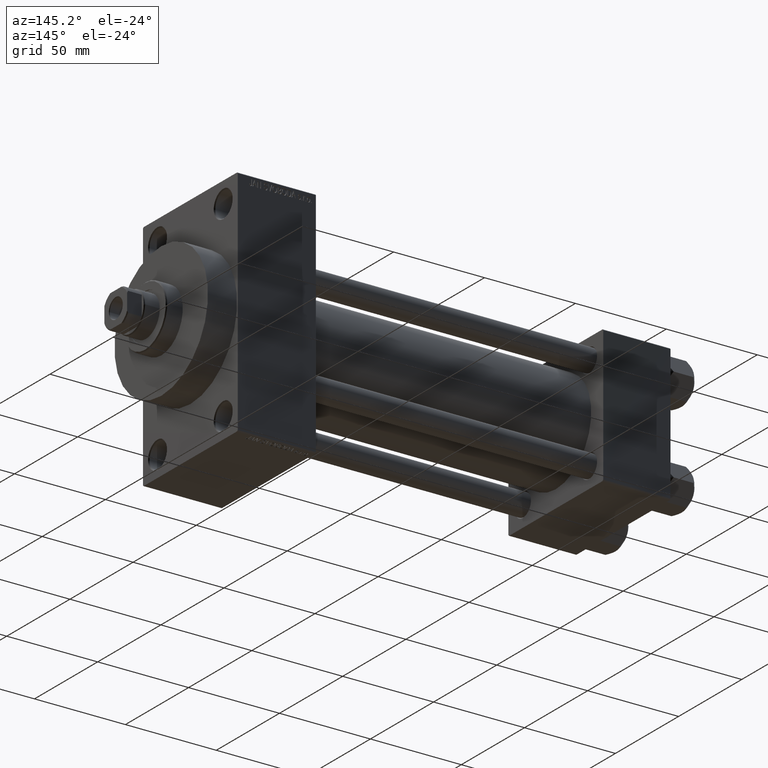
[diagram: clean part render]
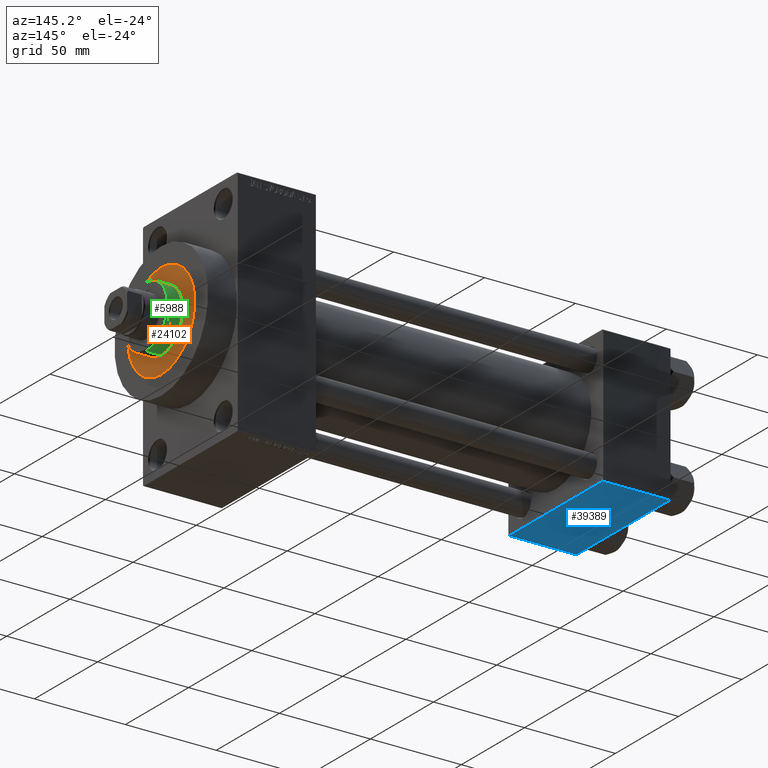
[diagram: same view with three faces highlighted in distinct colors, each labeled with its STEP entity id]
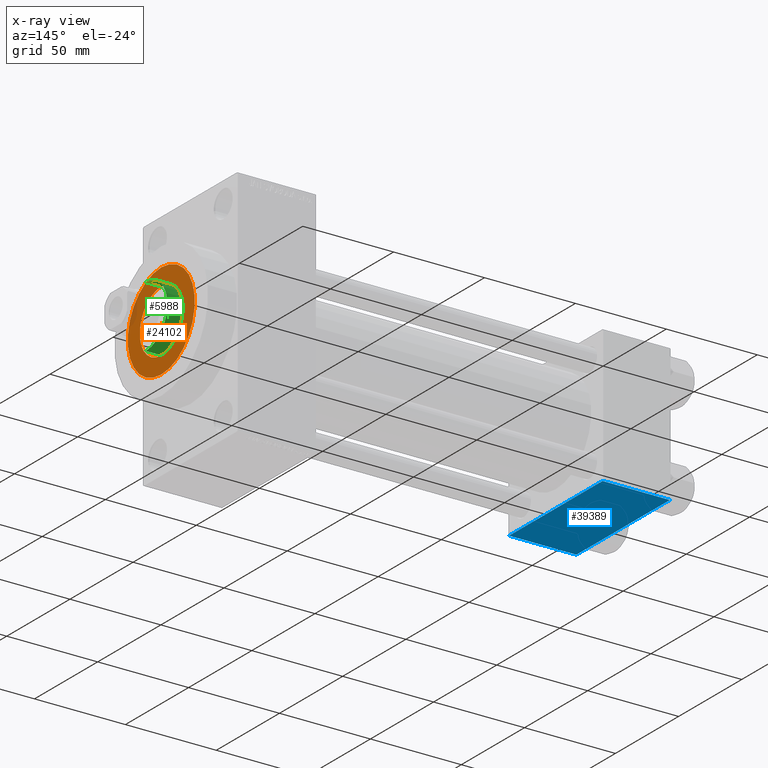
[diagram: x-ray of the same camera — body ghosted, the three highlighted faces saturated]
A machine part, auxiliary view with three faces highlighted in distinct colors.
The next image is the same camera in x-ray (body ghosted, the three faces saturated) — at least one of them is partly hidden behind the body in this view.
Their STEP definitions:

[orange] entity #24102 — the highlighted planar face has unit normal (1, -0, -0).
#3070 = EDGE_CURVE ( 'NONE', #34101, #16384, #21418, .T. ) ;
#3298 = ORIENTED_EDGE ( 'NONE', *, *, #14132, .F. ) ;
#3324 = DIRECTION ( 'NONE',  ( 1.000000000000000000, 0.000000000000000000, 0.000000000000000000 ) ) ;
#3555 = CARTESIAN_POINT ( 'NONE',  ( 26.50000000000000355, 3.245314017740486554E-15, 43.25999999999999801 ) ) ;
#5404 = AXIS2_PLACEMENT_3D ( 'NONE', #16826, #45733, #32120 ) ;
#5638 = DIRECTION ( 'NONE',  ( 1.000000000000000000, 0.000000000000000000, 0.000000000000000000 ) ) ;
#5893 = ORIENTED_EDGE ( 'NONE', *, *, #3070, .T. ) ;
#7927 = CARTESIAN_POINT ( 'NONE',  ( 17.00000000000000000, 2.081899558550500280E-15, 43.25999999999999801 ) ) ;
#9525 = AXIS2_PLACEMENT_3D ( 'NONE', #12564, #16381, #5638 ) ;
#10707 = FACE_BOUND ( 'NONE', #20693, .T. ) ;
#11099 = CARTESIAN_POINT ( 'NONE',  ( 0.000000000000000000, 0.000000000000000000, 43.25999999999999801 ) ) ;
#11235 = AXIS2_PLACEMENT_3D ( 'NONE', #18112, #29098, #42718 ) ;
#11565 = DIRECTION ( 'NONE',  ( 0.000000000000000000, 0.000000000000000000, 1.000000000000000000 ) ) ;
#12564 = CARTESIAN_POINT ( 'NONE',  ( 0.000000000000000000, 0.000000000000000000, 43.25999999999999801 ) ) ;
#14132 = EDGE_CURVE ( 'NONE', #40139, #17119, #32346, .T. ) ;
#14993 = ORIENTED_EDGE ( 'NONE', *, *, #16710, .T. ) ;
#16381 = DIRECTION ( 'NONE',  ( 0.000000000000000000, 0.000000000000000000, 1.000000000000000000 ) ) ;
#16384 = VERTEX_POINT ( 'NONE', #36487 ) ;
#16710 = EDGE_CURVE ( 'NONE', #16384, #34101, #40048, .T. ) ;
#16826 = CARTESIAN_POINT ( 'NONE',  ( 0.000000000000000000, 0.000000000000000000, 43.25999999999999801 ) ) ;
#17119 = VERTEX_POINT ( 'NONE', #7927 ) ;
#17409 = DIRECTION ( 'NONE',  ( 0.000000000000000000, 0.000000000000000000, 1.000000000000000000 ) ) ;
#18112 = CARTESIAN_POINT ( 'NONE',  ( 0.000000000000000000, 0.000000000000000000, 43.25999999999999801 ) ) ;
#20693 = EDGE_LOOP ( 'NONE', ( #3298, #22513 ) ) ;
#21418 = CIRCLE ( 'NONE', #5404, 26.50000000000000355 ) ;
#22395 = EDGE_CURVE ( 'NONE', #17119, #40139, #27181, .T. ) ;
#22431 = AXIS2_PLACEMENT_3D ( 'NONE', #11099, #11565, #40235 ) ;
#22513 = ORIENTED_EDGE ( 'NONE', *, *, #22395, .F. ) ;
#24102 = ADVANCED_FACE ( 'NONE', ( #10707, #46534 ), #47012, .T. ) ;
#27181 = CIRCLE ( 'NONE', #31764, 17.00000000000000000 ) ;
#28806 = EDGE_LOOP ( 'NONE', ( #14993, #5893 ) ) ;
#29098 = DIRECTION ( 'NONE',  ( 0.000000000000000000, 0.000000000000000000, 1.000000000000000000 ) ) ;
#29285 = CARTESIAN_POINT ( 'NONE',  ( -17.00000000000000000, 0.000000000000000000, 43.25999999999999801 ) ) ;
#31764 = AXIS2_PLACEMENT_3D ( 'NONE', #40097, #17409, #3324 ) ;
#32120 = DIRECTION ( 'NONE',  ( 1.000000000000000000, 0.000000000000000000, 0.000000000000000000 ) ) ;
#32346 = CIRCLE ( 'NONE', #22431, 17.00000000000000000 ) ;
#34101 = VERTEX_POINT ( 'NONE', #3555 ) ;
#36487 = CARTESIAN_POINT ( 'NONE',  ( -26.50000000000000355, 0.000000000000000000, 43.25999999999999801 ) ) ;
#40048 = CIRCLE ( 'NONE', #9525, 26.50000000000000355 ) ;
#40097 = CARTESIAN_POINT ( 'NONE',  ( 0.000000000000000000, 0.000000000000000000, 43.25999999999999801 ) ) ;
#40139 = VERTEX_POINT ( 'NONE', #29285 ) ;
#40235 = DIRECTION ( 'NONE',  ( 1.000000000000000000, 0.000000000000000000, 0.000000000000000000 ) ) ;
#42718 = DIRECTION ( 'NONE',  ( 1.000000000000000000, 0.000000000000000000, -0.000000000000000000 ) ) ;
#45733 = DIRECTION ( 'NONE',  ( 0.000000000000000000, 0.000000000000000000, 1.000000000000000000 ) ) ;
#46534 = FACE_OUTER_BOUND ( 'NONE', #28806, .T. ) ;
#47012 = PLANE ( 'NONE',  #11235 ) ;

[blue] entity #39389 — the highlighted planar face has unit normal (0, 0, -1).
#130 = CARTESIAN_POINT ( 'NONE',  ( 0.000000000000000000, 37.49999999999999289, -37.50000000000000000 ) ) ;
#2953 = VECTOR ( 'NONE', #5198, 1000.000000000000000 ) ;
#4725 = VECTOR ( 'NONE', #9327, 1000.000000000000000 ) ;
#4892 = DIRECTION ( 'NONE',  ( 0.000000000000000000, 9.251858538542972814E-17, -1.000000000000000000 ) ) ;
#5198 = DIRECTION ( 'NONE',  ( 0.000000000000000000, -1.000000000000000000, -9.251858538542972814E-17 ) ) ;
#5288 = EDGE_CURVE ( 'NONE', #10987, #37055, #39415, .T. ) ;
#8010 = PLANE ( 'NONE',  #21507 ) ;
#9327 = DIRECTION ( 'NONE',  ( 1.000000000000000000, 0.000000000000000000, 0.000000000000000000 ) ) ;
#10987 = VERTEX_POINT ( 'NONE', #45651 ) ;
#12286 = ORIENTED_EDGE ( 'NONE', *, *, #5288, .T. ) ;
#12523 = DIRECTION ( 'NONE',  ( 0.000000000000000000, 1.000000000000000000, 9.251858538542972814E-17 ) ) ;
#13965 = CARTESIAN_POINT ( 'NONE',  ( 0.000000000000000000, -37.00000000000002132, -37.50000000000000711 ) ) ;
#14528 = EDGE_CURVE ( 'NONE', #10987, #18440, #44280, .T. ) ;
#16172 = LINE ( 'NONE', #30516, #2953 ) ;
#16419 = ORIENTED_EDGE ( 'NONE', *, *, #14528, .F. ) ;
#18440 = VERTEX_POINT ( 'NONE', #13965 ) ;
#18994 = CARTESIAN_POINT ( 'NONE',  ( 37.00000000000000000, 37.49999999999999289, -37.50000000000000000 ) ) ;
#21173 = VERTEX_POINT ( 'NONE', #41084 ) ;
#21507 = AXIS2_PLACEMENT_3D ( 'NONE', #18994, #4892, #12523 ) ;
#23303 = CARTESIAN_POINT ( 'NONE',  ( 0.000000000000000000, -37.00000000000002132, -37.50000000000000711 ) ) ;
#24755 = ORIENTED_EDGE ( 'NONE', *, *, #30585, .T. ) ;
#27332 = CARTESIAN_POINT ( 'NONE',  ( 37.00000000000000000, 36.99999999999997868, -37.50000000000000000 ) ) ;
#27996 = EDGE_CURVE ( 'NONE', #37055, #21173, #16172, .T. ) ;
#28772 = DIRECTION ( 'NONE',  ( 0.000000000000000000, -1.000000000000000000, -9.251858538542972814E-17 ) ) ;
#30516 = CARTESIAN_POINT ( 'NONE',  ( 37.00000000000000000, 37.49999999999999289, -37.50000000000000000 ) ) ;
#30585 = EDGE_CURVE ( 'NONE', #21173, #18440, #44593, .T. ) ;
#31543 = CARTESIAN_POINT ( 'NONE',  ( 37.00000000000000000, 36.99999999999997868, -37.50000000000000000 ) ) ;
#33339 = FACE_OUTER_BOUND ( 'NONE', #34512, .T. ) ;
#34512 = EDGE_LOOP ( 'NONE', ( #16419, #12286, #35099, #24755 ) ) ;
#35099 = ORIENTED_EDGE ( 'NONE', *, *, #27996, .T. ) ;
#37055 = VERTEX_POINT ( 'NONE', #27332 ) ;
#39389 = ADVANCED_FACE ( 'NONE', ( #33339 ), #8010, .T. ) ;
#39415 = LINE ( 'NONE', #31543, #4725 ) ;
#39979 = VECTOR ( 'NONE', #28772, 1000.000000000000000 ) ;
#41084 = CARTESIAN_POINT ( 'NONE',  ( 37.00000000000000000, -37.00000000000002132, -37.50000000000000711 ) ) ;
#41465 = DIRECTION ( 'NONE',  ( -1.000000000000000000, 0.000000000000000000, 0.000000000000000000 ) ) ;
#44280 = LINE ( 'NONE', #130, #39979 ) ;
#44593 = LINE ( 'NONE', #23303, #46542 ) ;
#45651 = CARTESIAN_POINT ( 'NONE',  ( 0.000000000000000000, 36.99999999999997868, -37.50000000000000000 ) ) ;
#46542 = VECTOR ( 'NONE', #41465, 1000.000000000000000 ) ;

[green] entity #5988 — the highlighted cylindrical surface (partial cylindrical patch) has radius 17 mm, axis along (-1, 0, 0).
#513 = DIRECTION ( 'NONE',  ( -0.000000000000000000, -0.000000000000000000, -1.000000000000000000 ) ) ;
#873 = VERTEX_POINT ( 'NONE', #32376 ) ;
#4568 = DIRECTION ( 'NONE',  ( -1.000000000000000000, 0.000000000000000000, 0.000000000000000000 ) ) ;
#4797 = CARTESIAN_POINT ( 'NONE',  ( 0.000000000000000000, 0.000000000000000000, 52.25999999999999801 ) ) ;
#4947 = CIRCLE ( 'NONE', #8760, 17.00000000000000000 ) ;
#5106 = DIRECTION ( 'NONE',  ( 0.000000000000000000, 0.000000000000000000, -1.000000000000000000 ) ) ;
#5970 = CARTESIAN_POINT ( 'NONE',  ( -17.00000000000000000, 0.000000000000000000, 52.25999999999999801 ) ) ;
#5988 = ADVANCED_FACE ( 'NONE', ( #18675 ), #26760, .T. ) ;
#7927 = CARTESIAN_POINT ( 'NONE',  ( 17.00000000000000000, 2.081899558550500280E-15, 43.25999999999999801 ) ) ;
#8760 = AXIS2_PLACEMENT_3D ( 'NONE', #37842, #5106, #41179 ) ;
#11099 = CARTESIAN_POINT ( 'NONE',  ( 0.000000000000000000, 0.000000000000000000, 43.25999999999999801 ) ) ;
#11565 = DIRECTION ( 'NONE',  ( 0.000000000000000000, 0.000000000000000000, 1.000000000000000000 ) ) ;
#12385 = AXIS2_PLACEMENT_3D ( 'NONE', #4797, #26995, #4568 ) ;
#13831 = ORIENTED_EDGE ( 'NONE', *, *, #14132, .T. ) ;
#14132 = EDGE_CURVE ( 'NONE', #40139, #17119, #32346, .T. ) ;
#17119 = VERTEX_POINT ( 'NONE', #7927 ) ;
#18675 = FACE_OUTER_BOUND ( 'NONE', #30216, .T. ) ;
#19387 = ORIENTED_EDGE ( 'NONE', *, *, #38628, .T. ) ;
#22431 = AXIS2_PLACEMENT_3D ( 'NONE', #11099, #11565, #40235 ) ;
#23210 = VERTEX_POINT ( 'NONE', #42947 ) ;
#23878 = LINE ( 'NONE', #5970, #37520 ) ;
#26693 = VECTOR ( 'NONE', #513, 1000.000000000000000 ) ;
#26760 = CYLINDRICAL_SURFACE ( 'NONE', #12385, 17.00000000000000000 ) ;
#26995 = DIRECTION ( 'NONE',  ( -0.000000000000000000, -0.000000000000000000, -1.000000000000000000 ) ) ;
#28091 = ORIENTED_EDGE ( 'NONE', *, *, #45994, .T. ) ;
#29285 = CARTESIAN_POINT ( 'NONE',  ( -17.00000000000000000, 0.000000000000000000, 43.25999999999999801 ) ) ;
#29626 = LINE ( 'NONE', #37267, #26693 ) ;
#30216 = EDGE_LOOP ( 'NONE', ( #36083, #28091, #19387, #13831 ) ) ;
#32346 = CIRCLE ( 'NONE', #22431, 17.00000000000000000 ) ;
#32376 = CARTESIAN_POINT ( 'NONE',  ( -17.00000000000000000, 0.000000000000000000, 51.76000000000000512 ) ) ;
#33987 = EDGE_CURVE ( 'NONE', #23210, #17119, #29626, .T. ) ;
#36083 = ORIENTED_EDGE ( 'NONE', *, *, #33987, .F. ) ;
#37267 = CARTESIAN_POINT ( 'NONE',  ( 17.00000000000000000, 2.081899558550500280E-15, 52.25999999999999801 ) ) ;
#37520 = VECTOR ( 'NONE', #46556, 1000.000000000000000 ) ;
#37842 = CARTESIAN_POINT ( 'NONE',  ( 0.000000000000000000, 0.000000000000000000, 51.76000000000000512 ) ) ;
#38628 = EDGE_CURVE ( 'NONE', #873, #40139, #23878, .T. ) ;
#40139 = VERTEX_POINT ( 'NONE', #29285 ) ;
#40235 = DIRECTION ( 'NONE',  ( 1.000000000000000000, 0.000000000000000000, 0.000000000000000000 ) ) ;
#41179 = DIRECTION ( 'NONE',  ( 1.000000000000000000, 0.000000000000000000, 0.000000000000000000 ) ) ;
#42947 = CARTESIAN_POINT ( 'NONE',  ( 17.00000000000000000, 2.081899558550500280E-15, 51.76000000000000512 ) ) ;
#45994 = EDGE_CURVE ( 'NONE', #23210, #873, #4947, .T. ) ;
#46556 = DIRECTION ( 'NONE',  ( -0.000000000000000000, -0.000000000000000000, -1.000000000000000000 ) ) ;